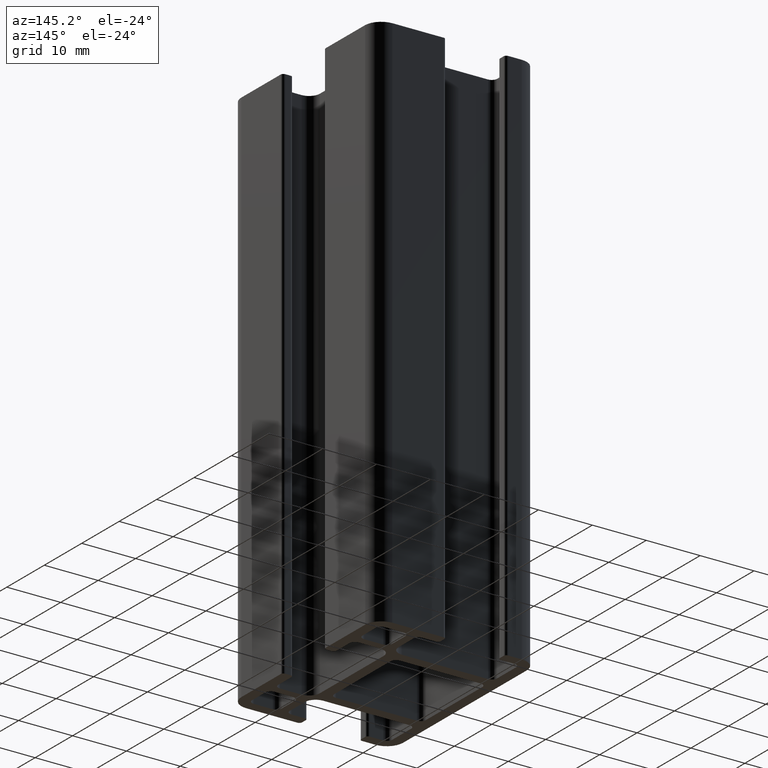
[diagram: clean part render]
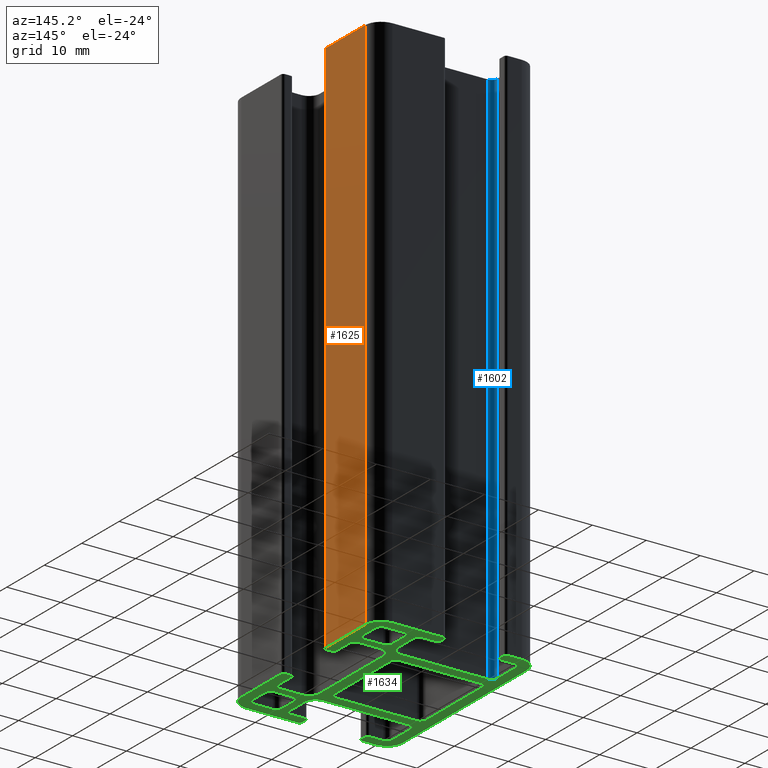
[diagram: same view with three faces highlighted in distinct colors, each labeled with its STEP entity id]
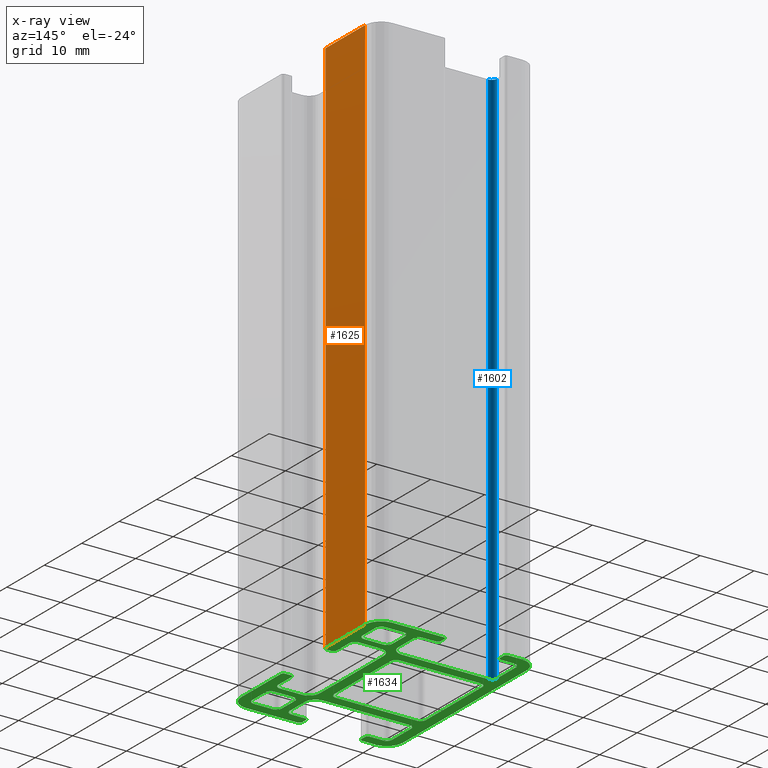
[diagram: x-ray of the same camera — body ghosted, the three highlighted faces saturated]
A machine part, auxiliary view with three faces highlighted in distinct colors.
The next image is the same camera in x-ray (body ghosted, the three faces saturated) — at least one of them is partly hidden behind the body in this view.
Their STEP definitions:

[orange] entity #1625 — the highlighted planar face has unit normal (1, 0, 0).
#213=FACE_OUTER_BOUND('',#295,.T.);
#295=EDGE_LOOP('',(#1319,#1320,#1321,#1322));
#438=LINE('',#2681,#598);
#458=LINE('',#2729,#618);
#459=LINE('',#2731,#619);
#460=LINE('',#2732,#620);
#598=VECTOR('',#2192,100.);
#618=VECTOR('',#2238,10.5);
#619=VECTOR('',#2239,100.);
#620=VECTOR('',#2240,10.5);
#764=VERTEX_POINT('',#2675);
#766=VERTEX_POINT('',#2679);
#781=VERTEX_POINT('',#2728);
#782=VERTEX_POINT('',#2730);
#986=EDGE_CURVE('',#764,#766,#438,.T.);
#1010=EDGE_CURVE('',#781,#766,#458,.T.);
#1011=EDGE_CURVE('',#781,#782,#459,.T.);
#1012=EDGE_CURVE('',#782,#764,#460,.T.);
#1319=ORIENTED_EDGE('',*,*,#986,.T.);
#1320=ORIENTED_EDGE('',*,*,#1010,.F.);
#1321=ORIENTED_EDGE('',*,*,#1011,.T.);
#1322=ORIENTED_EDGE('',*,*,#1012,.T.);
#1547=PLANE('',#1781);
#1625=ADVANCED_FACE('',(#213),#1547,.T.);
#1781=AXIS2_PLACEMENT_3D('',#2727,#2236,#2237);
#2192=DIRECTION('',(0.,0.,-1.));
#2236=DIRECTION('center_axis',(1.,3.36431219583381E-16,0.));
#2237=DIRECTION('ref_axis',(-3.5527136788005E-16,1.,0.));
#2238=DIRECTION('',(3.36431219583381E-16,-1.,0.));
#2239=DIRECTION('',(0.,0.,1.));
#2240=DIRECTION('',(3.36431219583381E-16,-1.,0.));
#2675=CARTESIAN_POINT('',(15.,5.99999999999998,100.));
#2679=CARTESIAN_POINT('',(15.,5.99999999999998,0.));
#2681=CARTESIAN_POINT('',(15.,5.99999999999998,0.));
#2727=CARTESIAN_POINT('Origin',(15.,-16.5,0.));
#2728=CARTESIAN_POINT('',(15.,16.5,0.));
#2729=CARTESIAN_POINT('',(15.,-8.25,0.));
#2730=CARTESIAN_POINT('',(15.,16.5,100.));
#2731=CARTESIAN_POINT('',(15.,16.5,0.));
#2732=CARTESIAN_POINT('',(15.,-8.25,100.));

[blue] entity #1602 — the highlighted cylindrical surface (edge-blend (fillet) strip) has radius 1 mm, axis along (0, 0, 1).
#71=CIRCLE('',#1737,1.00000000000001);
#72=CIRCLE('',#1738,1.00000000000001);
#126=CYLINDRICAL_SURFACE('',#1736,1.00000000000001);
#190=FACE_OUTER_BOUND('',#272,.T.);
#272=EDGE_LOOP('',(#1227,#1228,#1229,#1230));
#410=LINE('',#2588,#570);
#411=LINE('',#2594,#571);
#570=VECTOR('',#2098,100.);
#571=VECTOR('',#2105,100.);
#733=VERTEX_POINT('',#2584);
#734=VERTEX_POINT('',#2586);
#735=VERTEX_POINT('',#2590);
#736=VERTEX_POINT('',#2592);
#940=EDGE_CURVE('',#734,#733,#410,.T.);
#941=EDGE_CURVE('',#733,#735,#71,.T.);
#942=EDGE_CURVE('',#736,#734,#72,.T.);
#943=EDGE_CURVE('',#736,#735,#411,.T.);
#1227=ORIENTED_EDGE('',*,*,#941,.F.);
#1228=ORIENTED_EDGE('',*,*,#940,.F.);
#1229=ORIENTED_EDGE('',*,*,#942,.F.);
#1230=ORIENTED_EDGE('',*,*,#943,.T.);
#1602=ADVANCED_FACE('',(#190),#126,.F.);
#1736=AXIS2_PLACEMENT_3D('',#2589,#2099,#2100);
#1737=AXIS2_PLACEMENT_3D('',#2591,#2101,#2102);
#1738=AXIS2_PLACEMENT_3D('',#2593,#2103,#2104);
#2098=DIRECTION('',(0.,0.,1.));
#2099=DIRECTION('center_axis',(0.,0.,1.));
#2100=DIRECTION('ref_axis',(-1.,0.,0.));
#2101=DIRECTION('center_axis',(0.,0.,-1.));
#2102=DIRECTION('ref_axis',(-1.,0.,0.));
#2103=DIRECTION('center_axis',(0.,0.,1.));
#2104=DIRECTION('ref_axis',(-1.,0.,0.));
#2105=DIRECTION('',(0.,0.,1.));
#2584=CARTESIAN_POINT('',(-12.,10.5,100.));
#2586=CARTESIAN_POINT('',(-12.,10.5,0.));
#2588=CARTESIAN_POINT('',(-12.,10.5,0.));
#2589=CARTESIAN_POINT('Origin',(-12.,11.5,0.));
#2590=CARTESIAN_POINT('',(-13.,11.5,100.));
#2591=CARTESIAN_POINT('Origin',(-12.,11.5,100.));
#2592=CARTESIAN_POINT('',(-13.,11.5,0.));
#2593=CARTESIAN_POINT('Origin',(-12.,11.5,0.));
#2594=CARTESIAN_POINT('',(-13.,11.5,0.));

[green] entity #1634 — the highlighted planar face has unit normal (0, 0, 1).
#18=FACE_BOUND('',#308,.T.);
#19=FACE_BOUND('',#309,.T.);
#20=FACE_BOUND('',#310,.T.);
#22=CIRCLE('',#1640,1.);
#24=CIRCLE('',#1644,1.);
#26=CIRCLE('',#1648,1.);
#28=CIRCLE('',#1652,0.999999999999997);
#30=CIRCLE('',#1655,1.);
#32=CIRCLE('',#1659,1.);
#34=CIRCLE('',#1663,1.);
#36=CIRCLE('',#1667,1.);
#38=CIRCLE('',#1671,1.00000000000001);
#40=CIRCLE('',#1675,1.);
#42=CIRCLE('',#1679,1.00000000000002);
#44=CIRCLE('',#1683,0.999999999999996);
#46=CIRCLE('',#1687,2.);
#48=CIRCLE('',#1691,1.);
#50=CIRCLE('',#1695,1.);
#52=CIRCLE('',#1699,0.5);
#54=CIRCLE('',#1703,0.5);
#56=CIRCLE('',#1706,0.5);
#58=CIRCLE('',#1710,0.5);
#60=CIRCLE('',#1714,0.999999999999997);
#62=CIRCLE('',#1719,0.5);
#64=CIRCLE('',#1722,0.5);
#66=CIRCLE('',#1726,0.5);
#68=CIRCLE('',#1730,1.00000000000001);
#70=CIRCLE('',#1734,1.99999999999999);
#72=CIRCLE('',#1738,1.00000000000001);
#74=CIRCLE('',#1742,1.);
#76=CIRCLE('',#1746,0.5);
#78=CIRCLE('',#1749,1.99999999999999);
#80=CIRCLE('',#1753,2.);
#82=CIRCLE('',#1757,0.999999999999989);
#84=CIRCLE('',#1761,0.5);
#86=CIRCLE('',#1765,0.5);
#88=CIRCLE('',#1768,0.5);
#90=CIRCLE('',#1772,0.5);
#92=CIRCLE('',#1776,1.);
#97=CIRCLE('',#1789,3.);
#98=CIRCLE('',#1792,3.);
#99=CIRCLE('',#1795,3.);
#100=CIRCLE('',#1797,2.99999999999999);
#222=FACE_OUTER_BOUND('',#307,.T.);
#307=EDGE_LOOP('',(#1431,#1432,#1433,#1434,#1435,#1436,#1437,#1438,#1439,
#1440,#1441,#1442,#1443,#1444,#1445,#1446,#1447,#1448,#1449,#1450,#1451,
#1452,#1453,#1454,#1455,#1456,#1457,#1458,#1459,#1460,#1461,#1462,#1463,
#1464,#1465,#1466,#1467,#1468,#1469,#1470,#1471,#1472,#1473,#1474,#1475,
#1476,#1477,#1478,#1479,#1480,#1481,#1482,#1483,#1484,#1485,#1486));
#308=EDGE_LOOP('',(#1487,#1488,#1489,#1490,#1491,#1492,#1493,#1494));
#309=EDGE_LOOP('',(#1495,#1496,#1497,#1498,#1499,#1500,#1501,#1502));
#310=EDGE_LOOP('',(#1503,#1504,#1505,#1506,#1507,#1508,#1509,#1510));
#313=LINE('',#2293,#473);
#317=LINE('',#2305,#477);
#321=LINE('',#2317,#481);
#325=LINE('',#2329,#485);
#331=LINE('',#2348,#491);
#335=LINE('',#2360,#495);
#339=LINE('',#2372,#499);
#342=LINE('',#2381,#502);
#346=LINE('',#2395,#506);
#350=LINE('',#2407,#510);
#354=LINE('',#2419,#514);
#358=LINE('',#2429,#518);
#363=LINE('',#2444,#523);
#367=LINE('',#2456,#527);
#371=LINE('',#2468,#531);
#375=LINE('',#2480,#535);
#381=LINE('',#2501,#541);
#385=LINE('',#2513,#545);
#388=LINE('',#2522,#548);
#391=LINE('',#2530,#551);
#397=LINE('',#2551,#557);
#401=LINE('',#2563,#561);
#405=LINE('',#2575,#565);
#409=LINE('',#2587,#569);
#413=LINE('',#2599,#573);
#417=LINE('',#2611,#577);
#423=LINE('',#2630,#583);
#427=LINE('',#2642,#587);
#431=LINE('',#2654,#591);
#435=LINE('',#2666,#595);
#441=LINE('',#2687,#601);
#445=LINE('',#2699,#605);
#448=LINE('',#2708,#608);
#449=LINE('',#2711,#609);
#454=LINE('',#2720,#614);
#455=LINE('',#2723,#615);
#458=LINE('',#2729,#618);
#463=LINE('',#2738,#623);
#468=LINE('',#2756,#628);
#470=LINE('',#2762,#630);
#473=VECTOR('',#1805,3.50000000000003);
#477=VECTOR('',#1817,3.5);
#481=VECTOR('',#1829,3.50000000000003);
#485=VECTOR('',#1841,3.5);
#491=VECTOR('',#1861,15.);
#495=VECTOR('',#1873,15.);
#499=VECTOR('',#1885,15.);
#502=VECTOR('',#1896,15.);
#506=VECTOR('',#1908,3.5);
#510=VECTOR('',#1920,3.49999999999997);
#514=VECTOR('',#1932,3.5);
#518=VECTOR('',#1944,3.49999999999998);
#523=VECTOR('',#1957,16.);
#527=VECTOR('',#1969,4.99999999999999);
#531=VECTOR('',#1981,2.5);
#535=VECTOR('',#1993,1.);
#541=VECTOR('',#2013,1.);
#545=VECTOR('',#2025,2.5);
#548=VECTOR('',#2036,3.99999999999998);
#551=VECTOR('',#2041,1.);
#557=VECTOR('',#2061,0.999999999999999);
#561=VECTOR('',#2073,2.5);
#565=VECTOR('',#2085,4.00000000000005);
#569=VECTOR('',#2097,16.);
#573=VECTOR('',#2109,5.00000000000005);
#577=VECTOR('',#2121,2.5);
#583=VECTOR('',#2141,17.);
#587=VECTOR('',#2153,3.99999999999999);
#591=VECTOR('',#2165,3.50000000000004);
#595=VECTOR('',#2177,1.);
#601=VECTOR('',#2197,0.999999999999996);
#605=VECTOR('',#2209,3.49999999999999);
#608=VECTOR('',#2220,3.99999999999999);
#609=VECTOR('',#2223,9.50000000000001);
#614=VECTOR('',#2230,2.50000000000004);
#615=VECTOR('',#2233,2.50000000000005);
#618=VECTOR('',#2238,10.5);
#623=VECTOR('',#2245,10.5);
#628=VECTOR('',#2266,33.);
#630=VECTOR('',#2274,9.49999999999999);
#633=VERTEX_POINT('',#2290);
#634=VERTEX_POINT('',#2292);
#636=VERTEX_POINT('',#2298);
#638=VERTEX_POINT('',#2304);
#640=VERTEX_POINT('',#2310);
#642=VERTEX_POINT('',#2316);
#644=VERTEX_POINT('',#2322);
#646=VERTEX_POINT('',#2328);
#649=VERTEX_POINT('',#2338);
#650=VERTEX_POINT('',#2340);
#652=VERTEX_POINT('',#2346);
#654=VERTEX_POINT('',#2352);
#656=VERTEX_POINT('',#2358);
#658=VERTEX_POINT('',#2364);
#660=VERTEX_POINT('',#2370);
#662=VERTEX_POINT('',#2376);
#665=VERTEX_POINT('',#2386);
#666=VERTEX_POINT('',#2388);
#668=VERTEX_POINT('',#2394);
#670=VERTEX_POINT('',#2400);
#672=VERTEX_POINT('',#2406);
#674=VERTEX_POINT('',#2412);
#676=VERTEX_POINT('',#2418);
#678=VERTEX_POINT('',#2424);
#681=VERTEX_POINT('',#2434);
#682=VERTEX_POINT('',#2436);
#684=VERTEX_POINT('',#2442);
#686=VERTEX_POINT('',#2448);
#688=VERTEX_POINT('',#2454);
#690=VERTEX_POINT('',#2460);
#692=VERTEX_POINT('',#2466);
#694=VERTEX_POINT('',#2472);
#696=VERTEX_POINT('',#2478);
#698=VERTEX_POINT('',#2484);
#701=VERTEX_POINT('',#2491);
#702=VERTEX_POINT('',#2493);
#704=VERTEX_POINT('',#2499);
#706=VERTEX_POINT('',#2505);
#708=VERTEX_POINT('',#2511);
#710=VERTEX_POINT('',#2517);
#713=VERTEX_POINT('',#2527);
#714=VERTEX_POINT('',#2529);
#716=VERTEX_POINT('',#2535);
#719=VERTEX_POINT('',#2542);
#720=VERTEX_POINT('',#2544);
#722=VERTEX_POINT('',#2550);
#724=VERTEX_POINT('',#2556);
#726=VERTEX_POINT('',#2562);
#728=VERTEX_POINT('',#2568);
#730=VERTEX_POINT('',#2574);
#732=VERTEX_POINT('',#2580);
#734=VERTEX_POINT('',#2586);
#736=VERTEX_POINT('',#2592);
#738=VERTEX_POINT('',#2598);
#740=VERTEX_POINT('',#2604);
#742=VERTEX_POINT('',#2610);
#745=VERTEX_POINT('',#2620);
#746=VERTEX_POINT('',#2622);
#748=VERTEX_POINT('',#2628);
#750=VERTEX_POINT('',#2634);
#752=VERTEX_POINT('',#2640);
#754=VERTEX_POINT('',#2646);
#756=VERTEX_POINT('',#2652);
#758=VERTEX_POINT('',#2658);
#760=VERTEX_POINT('',#2664);
#762=VERTEX_POINT('',#2670);
#765=VERTEX_POINT('',#2677);
#766=VERTEX_POINT('',#2679);
#768=VERTEX_POINT('',#2685);
#770=VERTEX_POINT('',#2691);
#772=VERTEX_POINT('',#2697);
#774=VERTEX_POINT('',#2703);
#775=VERTEX_POINT('',#2710);
#778=VERTEX_POINT('',#2718);
#779=VERTEX_POINT('',#2722);
#781=VERTEX_POINT('',#2728);
#784=VERTEX_POINT('',#2736);
#788=VERTEX_POINT('',#2750);
#789=VERTEX_POINT('',#2754);
#790=VERTEX_POINT('',#2760);
#793=EDGE_CURVE('',#634,#633,#313,.T.);
#796=EDGE_CURVE('',#636,#634,#22,.T.);
#799=EDGE_CURVE('',#638,#636,#317,.T.);
#802=EDGE_CURVE('',#640,#638,#24,.T.);
#805=EDGE_CURVE('',#642,#640,#321,.T.);
#808=EDGE_CURVE('',#644,#642,#26,.T.);
#811=EDGE_CURVE('',#646,#644,#325,.T.);
#814=EDGE_CURVE('',#633,#646,#28,.T.);
#817=EDGE_CURVE('',#650,#649,#30,.T.);
#821=EDGE_CURVE('',#649,#652,#331,.T.);
#824=EDGE_CURVE('',#652,#654,#32,.T.);
#827=EDGE_CURVE('',#654,#656,#335,.T.);
#830=EDGE_CURVE('',#656,#658,#34,.T.);
#833=EDGE_CURVE('',#658,#660,#339,.T.);
#836=EDGE_CURVE('',#660,#662,#36,.T.);
#838=EDGE_CURVE('',#662,#650,#342,.T.);
#841=EDGE_CURVE('',#666,#665,#38,.T.);
#844=EDGE_CURVE('',#668,#666,#346,.T.);
#847=EDGE_CURVE('',#670,#668,#40,.T.);
#850=EDGE_CURVE('',#672,#670,#350,.T.);
#853=EDGE_CURVE('',#674,#672,#42,.T.);
#856=EDGE_CURVE('',#676,#674,#354,.T.);
#859=EDGE_CURVE('',#678,#676,#44,.T.);
#862=EDGE_CURVE('',#665,#678,#358,.T.);
#865=EDGE_CURVE('',#682,#681,#46,.T.);
#869=EDGE_CURVE('',#681,#684,#363,.T.);
#872=EDGE_CURVE('',#684,#686,#48,.T.);
#875=EDGE_CURVE('',#686,#688,#367,.T.);
#878=EDGE_CURVE('',#688,#690,#50,.T.);
#881=EDGE_CURVE('',#690,#692,#371,.T.);
#884=EDGE_CURVE('',#692,#694,#52,.T.);
#887=EDGE_CURVE('',#694,#696,#375,.T.);
#890=EDGE_CURVE('',#696,#698,#54,.T.);
#893=EDGE_CURVE('',#702,#701,#56,.T.);
#897=EDGE_CURVE('',#701,#704,#381,.T.);
#900=EDGE_CURVE('',#704,#706,#58,.T.);
#903=EDGE_CURVE('',#706,#708,#385,.T.);
#906=EDGE_CURVE('',#708,#710,#60,.T.);
#908=EDGE_CURVE('',#710,#682,#388,.T.);
#911=EDGE_CURVE('',#714,#713,#391,.T.);
#914=EDGE_CURVE('',#716,#714,#62,.T.);
#918=EDGE_CURVE('',#720,#719,#64,.T.);
#921=EDGE_CURVE('',#722,#720,#397,.T.);
#924=EDGE_CURVE('',#724,#722,#66,.T.);
#927=EDGE_CURVE('',#726,#724,#401,.T.);
#930=EDGE_CURVE('',#728,#726,#68,.T.);
#933=EDGE_CURVE('',#730,#728,#405,.T.);
#936=EDGE_CURVE('',#732,#730,#70,.T.);
#939=EDGE_CURVE('',#734,#732,#409,.T.);
#942=EDGE_CURVE('',#736,#734,#72,.T.);
#945=EDGE_CURVE('',#738,#736,#413,.T.);
#948=EDGE_CURVE('',#740,#738,#74,.T.);
#951=EDGE_CURVE('',#742,#740,#417,.T.);
#954=EDGE_CURVE('',#713,#742,#76,.T.);
#957=EDGE_CURVE('',#746,#745,#78,.T.);
#961=EDGE_CURVE('',#745,#748,#423,.T.);
#964=EDGE_CURVE('',#748,#750,#80,.T.);
#967=EDGE_CURVE('',#750,#752,#427,.T.);
#970=EDGE_CURVE('',#752,#754,#82,.T.);
#973=EDGE_CURVE('',#754,#756,#431,.T.);
#976=EDGE_CURVE('',#756,#758,#84,.T.);
#979=EDGE_CURVE('',#758,#760,#435,.T.);
#982=EDGE_CURVE('',#760,#762,#86,.T.);
#985=EDGE_CURVE('',#766,#765,#88,.T.);
#989=EDGE_CURVE('',#765,#768,#441,.T.);
#992=EDGE_CURVE('',#768,#770,#90,.T.);
#995=EDGE_CURVE('',#770,#772,#445,.T.);
#998=EDGE_CURVE('',#772,#774,#92,.T.);
#1000=EDGE_CURVE('',#774,#746,#448,.T.);
#1001=EDGE_CURVE('',#775,#702,#449,.T.);
#1006=EDGE_CURVE('',#698,#778,#454,.T.);
#1007=EDGE_CURVE('',#779,#716,#455,.T.);
#1010=EDGE_CURVE('',#781,#766,#458,.T.);
#1015=EDGE_CURVE('',#762,#784,#463,.T.);
#1023=EDGE_CURVE('',#778,#788,#97,.T.);
#1025=EDGE_CURVE('',#788,#789,#468,.T.);
#1026=EDGE_CURVE('',#789,#779,#98,.T.);
#1028=EDGE_CURVE('',#719,#790,#470,.T.);
#1029=EDGE_CURVE('',#790,#781,#99,.T.);
#1030=EDGE_CURVE('',#784,#775,#100,.T.);
#1431=ORIENTED_EDGE('',*,*,#890,.T.);
#1432=ORIENTED_EDGE('',*,*,#1006,.T.);
#1433=ORIENTED_EDGE('',*,*,#1023,.T.);
#1434=ORIENTED_EDGE('',*,*,#1025,.T.);
#1435=ORIENTED_EDGE('',*,*,#1026,.T.);
#1436=ORIENTED_EDGE('',*,*,#1007,.T.);
#1437=ORIENTED_EDGE('',*,*,#914,.T.);
#1438=ORIENTED_EDGE('',*,*,#911,.T.);
#1439=ORIENTED_EDGE('',*,*,#954,.T.);
#1440=ORIENTED_EDGE('',*,*,#951,.T.);
#1441=ORIENTED_EDGE('',*,*,#948,.T.);
#1442=ORIENTED_EDGE('',*,*,#945,.T.);
#1443=ORIENTED_EDGE('',*,*,#942,.T.);
#1444=ORIENTED_EDGE('',*,*,#939,.T.);
#1445=ORIENTED_EDGE('',*,*,#936,.T.);
#1446=ORIENTED_EDGE('',*,*,#933,.T.);
#1447=ORIENTED_EDGE('',*,*,#930,.T.);
#1448=ORIENTED_EDGE('',*,*,#927,.T.);
#1449=ORIENTED_EDGE('',*,*,#924,.T.);
#1450=ORIENTED_EDGE('',*,*,#921,.T.);
#1451=ORIENTED_EDGE('',*,*,#918,.T.);
#1452=ORIENTED_EDGE('',*,*,#1028,.T.);
#1453=ORIENTED_EDGE('',*,*,#1029,.T.);
#1454=ORIENTED_EDGE('',*,*,#1010,.T.);
#1455=ORIENTED_EDGE('',*,*,#985,.T.);
#1456=ORIENTED_EDGE('',*,*,#989,.T.);
#1457=ORIENTED_EDGE('',*,*,#992,.T.);
#1458=ORIENTED_EDGE('',*,*,#995,.T.);
#1459=ORIENTED_EDGE('',*,*,#998,.T.);
#1460=ORIENTED_EDGE('',*,*,#1000,.T.);
#1461=ORIENTED_EDGE('',*,*,#957,.T.);
#1462=ORIENTED_EDGE('',*,*,#961,.T.);
#1463=ORIENTED_EDGE('',*,*,#964,.T.);
#1464=ORIENTED_EDGE('',*,*,#967,.T.);
#1465=ORIENTED_EDGE('',*,*,#970,.T.);
#1466=ORIENTED_EDGE('',*,*,#973,.T.);
#1467=ORIENTED_EDGE('',*,*,#976,.T.);
#1468=ORIENTED_EDGE('',*,*,#979,.T.);
#1469=ORIENTED_EDGE('',*,*,#982,.T.);
#1470=ORIENTED_EDGE('',*,*,#1015,.T.);
#1471=ORIENTED_EDGE('',*,*,#1030,.T.);
#1472=ORIENTED_EDGE('',*,*,#1001,.T.);
#1473=ORIENTED_EDGE('',*,*,#893,.T.);
#1474=ORIENTED_EDGE('',*,*,#897,.T.);
#1475=ORIENTED_EDGE('',*,*,#900,.T.);
#1476=ORIENTED_EDGE('',*,*,#903,.T.);
#1477=ORIENTED_EDGE('',*,*,#906,.T.);
#1478=ORIENTED_EDGE('',*,*,#908,.T.);
#1479=ORIENTED_EDGE('',*,*,#865,.T.);
#1480=ORIENTED_EDGE('',*,*,#869,.T.);
#1481=ORIENTED_EDGE('',*,*,#872,.T.);
#1482=ORIENTED_EDGE('',*,*,#875,.T.);
#1483=ORIENTED_EDGE('',*,*,#878,.T.);
#1484=ORIENTED_EDGE('',*,*,#881,.T.);
#1485=ORIENTED_EDGE('',*,*,#884,.T.);
#1486=ORIENTED_EDGE('',*,*,#887,.T.);
#1487=ORIENTED_EDGE('',*,*,#793,.T.);
#1488=ORIENTED_EDGE('',*,*,#814,.T.);
#1489=ORIENTED_EDGE('',*,*,#811,.T.);
#1490=ORIENTED_EDGE('',*,*,#808,.T.);
#1491=ORIENTED_EDGE('',*,*,#805,.T.);
#1492=ORIENTED_EDGE('',*,*,#802,.T.);
#1493=ORIENTED_EDGE('',*,*,#799,.T.);
#1494=ORIENTED_EDGE('',*,*,#796,.T.);
#1495=ORIENTED_EDGE('',*,*,#817,.T.);
#1496=ORIENTED_EDGE('',*,*,#821,.T.);
#1497=ORIENTED_EDGE('',*,*,#824,.T.);
#1498=ORIENTED_EDGE('',*,*,#827,.T.);
#1499=ORIENTED_EDGE('',*,*,#830,.T.);
#1500=ORIENTED_EDGE('',*,*,#833,.T.);
#1501=ORIENTED_EDGE('',*,*,#836,.T.);
#1502=ORIENTED_EDGE('',*,*,#838,.T.);
#1503=ORIENTED_EDGE('',*,*,#841,.T.);
#1504=ORIENTED_EDGE('',*,*,#862,.T.);
#1505=ORIENTED_EDGE('',*,*,#859,.T.);
#1506=ORIENTED_EDGE('',*,*,#856,.T.);
#1507=ORIENTED_EDGE('',*,*,#853,.T.);
#1508=ORIENTED_EDGE('',*,*,#850,.T.);
#1509=ORIENTED_EDGE('',*,*,#847,.T.);
#1510=ORIENTED_EDGE('',*,*,#844,.T.);
#1552=PLANE('',#1798);
#1634=ADVANCED_FACE('',(#222,#18,#19,#20),#1552,.F.);
#1640=AXIS2_PLACEMENT_3D('',#2299,#1811,#1812);
#1644=AXIS2_PLACEMENT_3D('',#2311,#1823,#1824);
#1648=AXIS2_PLACEMENT_3D('',#2323,#1835,#1836);
#1652=AXIS2_PLACEMENT_3D('',#2333,#1847,#1848);
#1655=AXIS2_PLACEMENT_3D('',#2341,#1854,#1855);
#1659=AXIS2_PLACEMENT_3D('',#2354,#1867,#1868);
#1663=AXIS2_PLACEMENT_3D('',#2366,#1879,#1880);
#1667=AXIS2_PLACEMENT_3D('',#2378,#1891,#1892);
#1671=AXIS2_PLACEMENT_3D('',#2389,#1902,#1903);
#1675=AXIS2_PLACEMENT_3D('',#2401,#1914,#1915);
#1679=AXIS2_PLACEMENT_3D('',#2413,#1926,#1927);
#1683=AXIS2_PLACEMENT_3D('',#2425,#1938,#1939);
#1687=AXIS2_PLACEMENT_3D('',#2437,#1950,#1951);
#1691=AXIS2_PLACEMENT_3D('',#2450,#1963,#1964);
#1695=AXIS2_PLACEMENT_3D('',#2462,#1975,#1976);
#1699=AXIS2_PLACEMENT_3D('',#2474,#1987,#1988);
#1703=AXIS2_PLACEMENT_3D('',#2486,#1999,#2000);
#1706=AXIS2_PLACEMENT_3D('',#2494,#2006,#2007);
#1710=AXIS2_PLACEMENT_3D('',#2507,#2019,#2020);
#1714=AXIS2_PLACEMENT_3D('',#2519,#2031,#2032);
#1719=AXIS2_PLACEMENT_3D('',#2536,#2047,#2048);
#1722=AXIS2_PLACEMENT_3D('',#2545,#2055,#2056);
#1726=AXIS2_PLACEMENT_3D('',#2557,#2067,#2068);
#1730=AXIS2_PLACEMENT_3D('',#2569,#2079,#2080);
#1734=AXIS2_PLACEMENT_3D('',#2581,#2091,#2092);
#1738=AXIS2_PLACEMENT_3D('',#2593,#2103,#2104);
#1742=AXIS2_PLACEMENT_3D('',#2605,#2115,#2116);
#1746=AXIS2_PLACEMENT_3D('',#2615,#2127,#2128);
#1749=AXIS2_PLACEMENT_3D('',#2623,#2134,#2135);
#1753=AXIS2_PLACEMENT_3D('',#2636,#2147,#2148);
#1757=AXIS2_PLACEMENT_3D('',#2648,#2159,#2160);
#1761=AXIS2_PLACEMENT_3D('',#2660,#2171,#2172);
#1765=AXIS2_PLACEMENT_3D('',#2672,#2183,#2184);
#1768=AXIS2_PLACEMENT_3D('',#2680,#2190,#2191);
#1772=AXIS2_PLACEMENT_3D('',#2693,#2203,#2204);
#1776=AXIS2_PLACEMENT_3D('',#2705,#2215,#2216);
#1789=AXIS2_PLACEMENT_3D('',#2752,#2261,#2262);
#1792=AXIS2_PLACEMENT_3D('',#2758,#2269,#2270);
#1795=AXIS2_PLACEMENT_3D('',#2764,#2277,#2278);
#1797=AXIS2_PLACEMENT_3D('',#2766,#2281,#2282);
#1798=AXIS2_PLACEMENT_3D('',#2767,#2283,#2284);
#1805=DIRECTION('',(0.,-1.,0.));
#1811=DIRECTION('center_axis',(0.,0.,1.));
#1812=DIRECTION('ref_axis',(0.,1.,0.));
#1817=DIRECTION('',(-1.,0.,0.));
#1823=DIRECTION('center_axis',(0.,0.,1.));
#1824=DIRECTION('ref_axis',(1.,0.,0.));
#1829=DIRECTION('',(0.,1.,0.));
#1835=DIRECTION('center_axis',(0.,0.,1.));
#1836=DIRECTION('ref_axis',(0.,-1.,0.));
#1841=DIRECTION('',(1.,0.,0.));
#1847=DIRECTION('center_axis',(0.,0.,1.));
#1848=DIRECTION('ref_axis',(-1.,0.,0.));
#1854=DIRECTION('center_axis',(0.,0.,1.));
#1855=DIRECTION('ref_axis',(0.,1.,0.));
#1861=DIRECTION('',(0.,-1.,0.));
#1867=DIRECTION('center_axis',(0.,0.,1.));
#1868=DIRECTION('ref_axis',(-1.,0.,0.));
#1873=DIRECTION('',(1.,-5.92118946466751E-16,0.));
#1879=DIRECTION('center_axis',(0.,0.,1.));
#1880=DIRECTION('ref_axis',(-5.55111512312577E-16,-1.,0.));
#1885=DIRECTION('',(-1.8503717077086E-16,1.,0.));
#1891=DIRECTION('center_axis',(0.,0.,1.));
#1892=DIRECTION('ref_axis',(1.,0.,0.));
#1896=DIRECTION('',(-1.,1.48029736616688E-16,0.));
#1902=DIRECTION('center_axis',(0.,0.,1.));
#1903=DIRECTION('ref_axis',(0.,1.,0.));
#1908=DIRECTION('',(-1.,0.,0.));
#1914=DIRECTION('center_axis',(0.,0.,1.));
#1915=DIRECTION('ref_axis',(1.,0.,0.));
#1920=DIRECTION('',(0.,1.,0.));
#1926=DIRECTION('center_axis',(0.,0.,1.));
#1927=DIRECTION('ref_axis',(0.,-1.,0.));
#1932=DIRECTION('',(1.,1.26882631385732E-15,0.));
#1938=DIRECTION('center_axis',(0.,0.,1.));
#1939=DIRECTION('ref_axis',(-1.,0.,0.));
#1944=DIRECTION('',(0.,-1.,0.));
#1950=DIRECTION('center_axis',(0.,0.,1.));
#1951=DIRECTION('ref_axis',(1.,0.,0.));
#1957=DIRECTION('',(-1.,0.,0.));
#1963=DIRECTION('center_axis',(0.,0.,1.));
#1964=DIRECTION('ref_axis',(0.,1.,0.));
#1969=DIRECTION('',(0.,-1.,0.));
#1975=DIRECTION('center_axis',(0.,0.,1.));
#1976=DIRECTION('ref_axis',(-1.,0.,0.));
#1981=DIRECTION('',(1.,1.77635683940025E-15,0.));
#1987=DIRECTION('center_axis',(0.,0.,-1.));
#1988=DIRECTION('ref_axis',(-1.,0.,0.));
#1993=DIRECTION('',(0.,-1.,0.));
#1999=DIRECTION('center_axis',(0.,0.,-1.));
#2000=DIRECTION('ref_axis',(-3.1086244689505E-14,1.,0.));
#2006=DIRECTION('center_axis',(0.,0.,-1.));
#2007=DIRECTION('ref_axis',(1.,0.,0.));
#2013=DIRECTION('',(5.55111512312578E-16,1.,0.));
#2019=DIRECTION('center_axis',(0.,0.,-1.));
#2020=DIRECTION('ref_axis',(1.11022302462514E-15,-1.,0.));
#2025=DIRECTION('',(1.,1.77635683940025E-15,0.));
#2031=DIRECTION('center_axis',(0.,0.,1.));
#2032=DIRECTION('ref_axis',(2.22044604925033E-15,-1.,0.));
#2036=DIRECTION('',(0.,1.,0.));
#2041=DIRECTION('',(0.,-1.,0.));
#2047=DIRECTION('center_axis',(0.,0.,-1.));
#2048=DIRECTION('ref_axis',(-1.,0.,0.));
#2055=DIRECTION('center_axis',(0.,0.,-1.));
#2056=DIRECTION('ref_axis',(1.33226762955015E-14,-1.,0.));
#2061=DIRECTION('',(0.,1.,0.));
#2067=DIRECTION('center_axis',(0.,0.,-1.));
#2068=DIRECTION('ref_axis',(1.,0.,0.));
#2073=DIRECTION('',(-1.,0.,0.));
#2079=DIRECTION('center_axis',(0.,0.,1.));
#2080=DIRECTION('ref_axis',(1.,0.,0.));
#2085=DIRECTION('',(0.,1.,0.));
#2091=DIRECTION('center_axis',(0.,0.,1.));
#2092=DIRECTION('ref_axis',(2.77555756156289E-16,-1.,0.));
#2097=DIRECTION('',(1.,1.38777878078145E-16,0.));
#2103=DIRECTION('center_axis',(0.,0.,1.));
#2104=DIRECTION('ref_axis',(-1.,0.,0.));
#2109=DIRECTION('',(0.,-1.,0.));
#2115=DIRECTION('center_axis',(0.,0.,1.));
#2116=DIRECTION('ref_axis',(0.,1.,0.));
#2121=DIRECTION('',(-1.,0.,0.));
#2127=DIRECTION('center_axis',(0.,0.,-1.));
#2128=DIRECTION('ref_axis',(0.,1.,0.));
#2134=DIRECTION('center_axis',(0.,0.,1.));
#2135=DIRECTION('ref_axis',(0.,1.,0.));
#2141=DIRECTION('',(0.,-1.,0.));
#2147=DIRECTION('center_axis',(0.,0.,1.));
#2148=DIRECTION('ref_axis',(-1.,0.,0.));
#2153=DIRECTION('',(1.,0.,0.));
#2159=DIRECTION('center_axis',(0.,0.,1.));
#2160=DIRECTION('ref_axis',(0.,-1.,0.));
#2165=DIRECTION('',(0.,1.,0.));
#2171=DIRECTION('center_axis',(0.,0.,-1.));
#2172=DIRECTION('ref_axis',(8.88178419700124E-15,-1.,0.));
#2177=DIRECTION('',(1.,-2.22044604925031E-15,0.));
#2183=DIRECTION('center_axis',(0.,0.,-1.));
#2184=DIRECTION('ref_axis',(-1.,-2.22044604925025E-14,0.));
#2190=DIRECTION('center_axis',(0.,0.,-1.));
#2191=DIRECTION('ref_axis',(8.88178419700124E-15,1.,0.));
#2197=DIRECTION('',(-1.,2.22044604925032E-15,0.));
#2203=DIRECTION('center_axis',(0.,0.,-1.));
#2204=DIRECTION('ref_axis',(1.,0.,0.));
#2209=DIRECTION('',(0.,1.,0.));
#2215=DIRECTION('center_axis',(0.,0.,1.));
#2216=DIRECTION('ref_axis',(1.,0.,0.));
#2220=DIRECTION('',(-1.,0.,0.));
#2223=DIRECTION('',(-1.,-3.70074341541719E-16,0.));
#2230=DIRECTION('',(-1.,-3.70074341541719E-16,0.));
#2233=DIRECTION('',(1.,9.25185853854297E-17,0.));
#2238=DIRECTION('',(3.36431219583381E-16,-1.,0.));
#2245=DIRECTION('',(3.36431219583381E-16,-1.,0.));
#2261=DIRECTION('center_axis',(0.,0.,-1.));
#2262=DIRECTION('ref_axis',(1.,7.40148683083438E-16,0.));
#2266=DIRECTION('',(-5.38289951333409E-16,1.,0.));
#2269=DIRECTION('center_axis',(0.,0.,-1.));
#2270=DIRECTION('ref_axis',(0.,-1.,0.));
#2274=DIRECTION('',(1.,9.25185853854297E-17,0.));
#2277=DIRECTION('center_axis',(0.,0.,-1.));
#2278=DIRECTION('ref_axis',(-1.,0.,0.));
#2281=DIRECTION('center_axis',(0.,0.,-1.));
#2282=DIRECTION('ref_axis',(0.,1.,0.));
#2283=DIRECTION('center_axis',(0.,0.,1.));
#2284=DIRECTION('ref_axis',(1.,0.,0.));
#2290=CARTESIAN_POINT('',(7.5,13.,0.));
#2292=CARTESIAN_POINT('',(7.5,16.5,0.));
#2293=CARTESIAN_POINT('',(7.5,8.25000000000001,0.));
#2298=CARTESIAN_POINT('',(8.5,17.5,0.));
#2299=CARTESIAN_POINT('Origin',(8.5,16.5,0.));
#2304=CARTESIAN_POINT('',(12.,17.5,0.));
#2305=CARTESIAN_POINT('',(6.,17.5,0.));
#2310=CARTESIAN_POINT('',(13.,16.5,0.));
#2311=CARTESIAN_POINT('Origin',(12.,16.5,0.));
#2316=CARTESIAN_POINT('',(13.,13.,0.));
#2317=CARTESIAN_POINT('',(13.,6.49999999999999,0.));
#2322=CARTESIAN_POINT('',(12.,12.,0.));
#2323=CARTESIAN_POINT('Origin',(12.,13.,0.));
#2328=CARTESIAN_POINT('',(8.49999999999999,12.,0.));
#2329=CARTESIAN_POINT('',(4.25,12.,0.));
#2333=CARTESIAN_POINT('Origin',(8.49999999999999,13.,0.));
#2338=CARTESIAN_POINT('',(-13.,7.49999999999997,0.));
#2340=CARTESIAN_POINT('',(-12.,8.49999999999998,0.));
#2341=CARTESIAN_POINT('Origin',(-12.,7.49999999999997,0.));
#2346=CARTESIAN_POINT('',(-13.,-7.50000000000002,0.));
#2348=CARTESIAN_POINT('',(-13.,3.74999999999998,0.));
#2352=CARTESIAN_POINT('',(-12.,-8.50000000000002,0.));
#2354=CARTESIAN_POINT('Origin',(-12.,-7.50000000000002,0.));
#2358=CARTESIAN_POINT('',(3.00000000000001,-8.50000000000003,0.));
#2360=CARTESIAN_POINT('',(-5.99999999999999,-8.50000000000002,0.));
#2364=CARTESIAN_POINT('',(4.00000000000001,-7.50000000000003,0.));
#2366=CARTESIAN_POINT('Origin',(3.00000000000001,-7.50000000000003,0.));
#2370=CARTESIAN_POINT('',(4.00000000000001,7.49999999999997,0.));
#2372=CARTESIAN_POINT('',(4.00000000000001,-3.75000000000001,0.));
#2376=CARTESIAN_POINT('',(3.00000000000001,8.49999999999997,0.));
#2378=CARTESIAN_POINT('Origin',(3.00000000000001,7.49999999999997,0.));
#2381=CARTESIAN_POINT('',(1.5,8.49999999999997,0.));
#2386=CARTESIAN_POINT('',(7.5,-13.,0.));
#2388=CARTESIAN_POINT('',(8.49999999999999,-12.,0.));
#2389=CARTESIAN_POINT('Origin',(8.49999999999999,-13.,0.));
#2394=CARTESIAN_POINT('',(12.,-12.,0.));
#2395=CARTESIAN_POINT('',(6.,-12.,0.));
#2400=CARTESIAN_POINT('',(13.,-13.,0.));
#2401=CARTESIAN_POINT('Origin',(12.,-13.,0.));
#2406=CARTESIAN_POINT('',(13.,-16.5,0.));
#2407=CARTESIAN_POINT('',(13.,-8.25,0.));
#2412=CARTESIAN_POINT('',(12.,-17.5,0.));
#2413=CARTESIAN_POINT('Origin',(12.,-16.5,0.));
#2418=CARTESIAN_POINT('',(8.5,-17.5,0.));
#2419=CARTESIAN_POINT('',(4.25000000000001,-17.5,0.));
#2424=CARTESIAN_POINT('',(7.5,-16.5,0.));
#2425=CARTESIAN_POINT('Origin',(8.5,-16.5,0.));
#2429=CARTESIAN_POINT('',(7.5,-6.50000000000001,0.));
#2434=CARTESIAN_POINT('',(4.00000000000001,-10.5,0.));
#2436=CARTESIAN_POINT('',(6.00000000000001,-12.5,0.));
#2437=CARTESIAN_POINT('Origin',(4.00000000000001,-12.5,0.));
#2442=CARTESIAN_POINT('',(-12.,-10.5,0.));
#2444=CARTESIAN_POINT('',(2.,-10.5,0.));
#2448=CARTESIAN_POINT('',(-13.,-11.5,0.));
#2450=CARTESIAN_POINT('Origin',(-12.,-11.5,0.));
#2454=CARTESIAN_POINT('',(-13.,-16.5,0.));
#2456=CARTESIAN_POINT('',(-13.,-5.75000000000002,0.));
#2460=CARTESIAN_POINT('',(-12.,-17.5,0.));
#2462=CARTESIAN_POINT('Origin',(-12.,-16.5,0.));
#2466=CARTESIAN_POINT('',(-9.49999999999997,-17.5,0.));
#2468=CARTESIAN_POINT('',(-5.99999999999997,-17.5,0.));
#2472=CARTESIAN_POINT('',(-8.99999999999997,-18.,0.));
#2474=CARTESIAN_POINT('Origin',(-9.49999999999997,-18.,0.));
#2478=CARTESIAN_POINT('',(-8.99999999999997,-19.,0.));
#2480=CARTESIAN_POINT('',(-8.99999999999997,-9.00000000000001,0.));
#2484=CARTESIAN_POINT('',(-9.49999999999996,-19.5,0.));
#2486=CARTESIAN_POINT('Origin',(-9.49999999999997,-19.,0.));
#2491=CARTESIAN_POINT('',(2.00000000000001,-19.,0.));
#2493=CARTESIAN_POINT('',(2.5,-19.5,0.));
#2494=CARTESIAN_POINT('Origin',(2.50000000000001,-19.,0.));
#2499=CARTESIAN_POINT('',(2.00000000000001,-18.,0.));
#2501=CARTESIAN_POINT('',(2.00000000000001,-9.50000000000001,0.));
#2505=CARTESIAN_POINT('',(2.50000000000001,-17.5,0.));
#2507=CARTESIAN_POINT('Origin',(2.50000000000001,-18.,0.));
#2511=CARTESIAN_POINT('',(5.00000000000001,-17.5,0.));
#2513=CARTESIAN_POINT('',(1.25000000000002,-17.5,0.));
#2517=CARTESIAN_POINT('',(6.00000000000001,-16.5,0.));
#2519=CARTESIAN_POINT('Origin',(5.,-16.5,0.));
#2522=CARTESIAN_POINT('',(6.00000000000001,-8.25000000000001,0.));
#2527=CARTESIAN_POINT('',(-8.99999999999997,18.,0.));
#2529=CARTESIAN_POINT('',(-8.99999999999997,19.,0.));
#2530=CARTESIAN_POINT('',(-8.99999999999997,9.50000000000001,0.));
#2535=CARTESIAN_POINT('',(-9.49999999999996,19.5,0.));
#2536=CARTESIAN_POINT('Origin',(-9.49999999999997,19.,0.));
#2542=CARTESIAN_POINT('',(2.5,19.5,0.));
#2544=CARTESIAN_POINT('',(2.00000000000001,19.,0.));
#2545=CARTESIAN_POINT('Origin',(2.50000000000001,19.,0.));
#2550=CARTESIAN_POINT('',(2.00000000000001,18.,0.));
#2551=CARTESIAN_POINT('',(2.00000000000001,9.00000000000001,0.));
#2556=CARTESIAN_POINT('',(2.50000000000001,17.5,0.));
#2557=CARTESIAN_POINT('Origin',(2.50000000000001,18.,0.));
#2562=CARTESIAN_POINT('',(5.00000000000001,17.5,0.));
#2563=CARTESIAN_POINT('',(2.5,17.5,0.));
#2568=CARTESIAN_POINT('',(6.00000000000001,16.5,0.));
#2569=CARTESIAN_POINT('Origin',(5.00000000000001,16.5,0.));
#2574=CARTESIAN_POINT('',(6.00000000000001,12.5,0.));
#2575=CARTESIAN_POINT('',(6.00000000000001,6.24999999999998,0.));
#2580=CARTESIAN_POINT('',(4.00000000000001,10.5,0.));
#2581=CARTESIAN_POINT('Origin',(4.00000000000001,12.5,0.));
#2586=CARTESIAN_POINT('',(-12.,10.5,0.));
#2587=CARTESIAN_POINT('',(-5.99999999999999,10.5,0.));
#2592=CARTESIAN_POINT('',(-13.,11.5,0.));
#2593=CARTESIAN_POINT('Origin',(-12.,11.5,0.));
#2598=CARTESIAN_POINT('',(-13.,16.5,0.));
#2599=CARTESIAN_POINT('',(-13.,8.25000000000001,0.));
#2604=CARTESIAN_POINT('',(-12.,17.5,0.));
#2605=CARTESIAN_POINT('Origin',(-12.,16.5,0.));
#2610=CARTESIAN_POINT('',(-9.49999999999997,17.5,0.));
#2611=CARTESIAN_POINT('',(-4.74999999999999,17.5,0.));
#2615=CARTESIAN_POINT('Origin',(-9.49999999999997,18.,0.));
#2620=CARTESIAN_POINT('',(6.00000000000001,8.49999999999997,0.));
#2622=CARTESIAN_POINT('',(8.00000000000001,10.5,0.));
#2623=CARTESIAN_POINT('Origin',(8.00000000000001,8.49999999999997,0.));
#2628=CARTESIAN_POINT('',(6.00000000000001,-8.50000000000003,0.));
#2630=CARTESIAN_POINT('',(6.00000000000001,4.24999999999998,0.));
#2634=CARTESIAN_POINT('',(8.00000000000001,-10.5,0.));
#2636=CARTESIAN_POINT('Origin',(8.00000000000001,-8.50000000000003,0.));
#2640=CARTESIAN_POINT('',(12.,-10.5,0.));
#2642=CARTESIAN_POINT('',(4.,-10.5,0.));
#2646=CARTESIAN_POINT('',(13.,-9.50000000000003,0.));
#2648=CARTESIAN_POINT('Origin',(12.,-9.50000000000003,0.));
#2652=CARTESIAN_POINT('',(13.,-5.99999999999999,0.));
#2654=CARTESIAN_POINT('',(13.,-4.75000000000002,0.));
#2658=CARTESIAN_POINT('',(13.5,-5.49999999999999,0.));
#2660=CARTESIAN_POINT('Origin',(13.5,-5.99999999999999,0.));
#2664=CARTESIAN_POINT('',(14.5,-5.49999999999999,0.));
#2666=CARTESIAN_POINT('',(6.74999999999999,-5.49999999999997,0.));
#2670=CARTESIAN_POINT('',(15.,-5.99999999999998,0.));
#2672=CARTESIAN_POINT('Origin',(14.5,-5.99999999999999,0.));
#2677=CARTESIAN_POINT('',(14.5,5.49999999999998,0.));
#2679=CARTESIAN_POINT('',(15.,5.99999999999998,0.));
#2680=CARTESIAN_POINT('Origin',(14.5,5.99999999999998,0.));
#2685=CARTESIAN_POINT('',(13.5,5.49999999999998,0.));
#2687=CARTESIAN_POINT('',(7.25,5.5,0.));
#2691=CARTESIAN_POINT('',(13.,5.99999999999998,0.));
#2693=CARTESIAN_POINT('Origin',(13.5,5.99999999999998,0.));
#2697=CARTESIAN_POINT('',(13.,9.49999999999997,0.));
#2699=CARTESIAN_POINT('',(13.,2.99999999999999,0.));
#2703=CARTESIAN_POINT('',(12.,10.5,0.));
#2705=CARTESIAN_POINT('Origin',(12.,9.49999999999997,0.));
#2708=CARTESIAN_POINT('',(6.,10.5,0.));
#2710=CARTESIAN_POINT('',(12.,-19.5,0.));
#2711=CARTESIAN_POINT('',(-5.99999999999999,-19.5,0.));
#2718=CARTESIAN_POINT('',(-12.,-19.5,0.));
#2720=CARTESIAN_POINT('',(-5.99999999999999,-19.5,0.));
#2722=CARTESIAN_POINT('',(-12.,19.5,0.));
#2723=CARTESIAN_POINT('',(5.99999999999999,19.5,0.));
#2728=CARTESIAN_POINT('',(15.,16.5,0.));
#2729=CARTESIAN_POINT('',(15.,-8.25,0.));
#2736=CARTESIAN_POINT('',(15.,-16.5,0.));
#2738=CARTESIAN_POINT('',(15.,-8.25,0.));
#2750=CARTESIAN_POINT('',(-15.,-16.5,0.));
#2752=CARTESIAN_POINT('Origin',(-12.,-16.5,0.));
#2754=CARTESIAN_POINT('',(-15.,16.5,0.));
#2756=CARTESIAN_POINT('',(-15.,8.24999999999999,0.));
#2758=CARTESIAN_POINT('Origin',(-12.,16.5,0.));
#2760=CARTESIAN_POINT('',(12.,19.5,0.));
#2762=CARTESIAN_POINT('',(5.99999999999999,19.5,0.));
#2764=CARTESIAN_POINT('Origin',(12.,16.5,0.));
#2766=CARTESIAN_POINT('Origin',(12.,-16.5,0.));
#2767=CARTESIAN_POINT('Origin',(-2.22044604925031E-15,-1.11022302462516E-15,
0.));